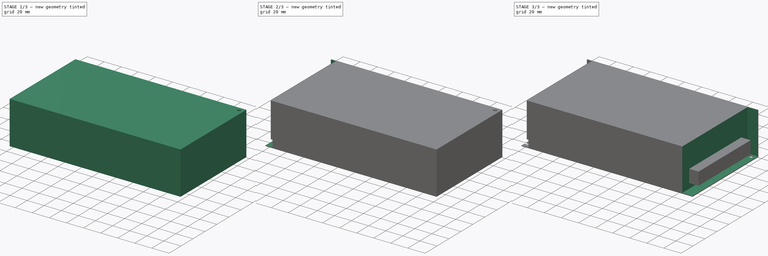
[diagram: build sequence overview — one tinted view per stage of 3, left to right]
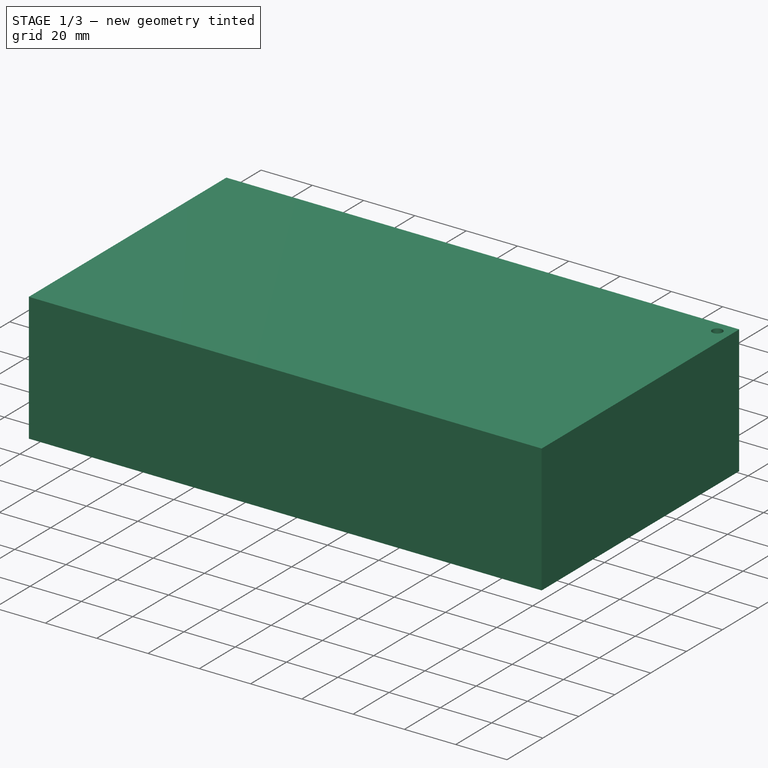
[diagram: stage 1 of 3 — iso view after this stage's code; geometry added in this stage tinted green]
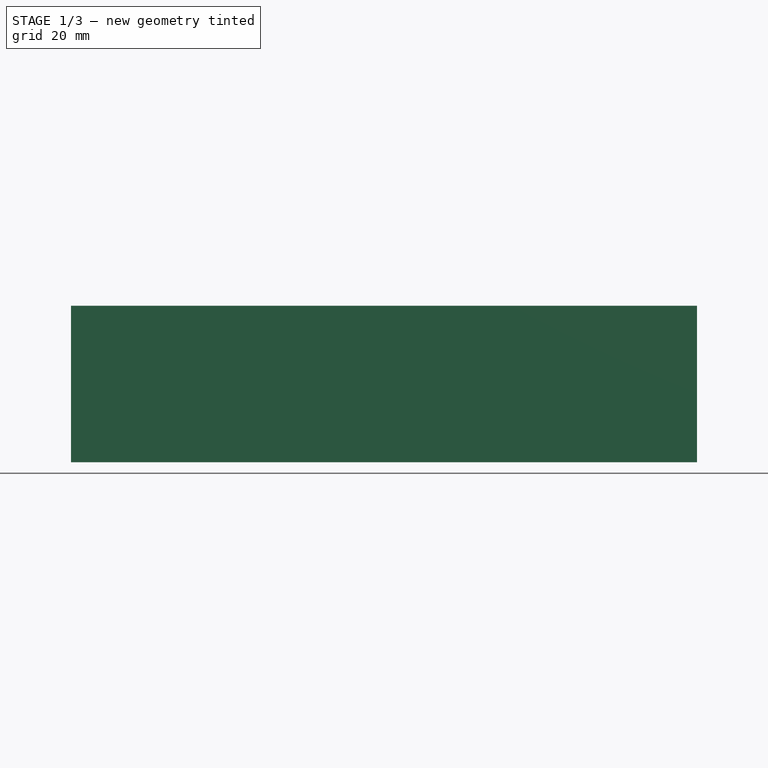
[diagram: stage 1 of 3 — front view after this stage's code; geometry added in this stage tinted green]
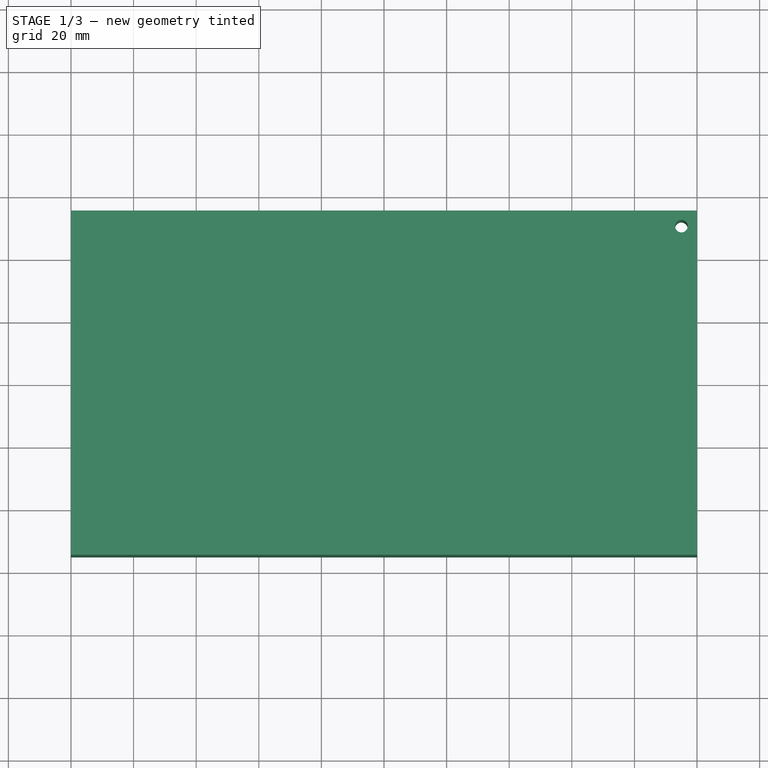
[diagram: stage 1 of 3 — top view after this stage's code; geometry added in this stage tinted green]
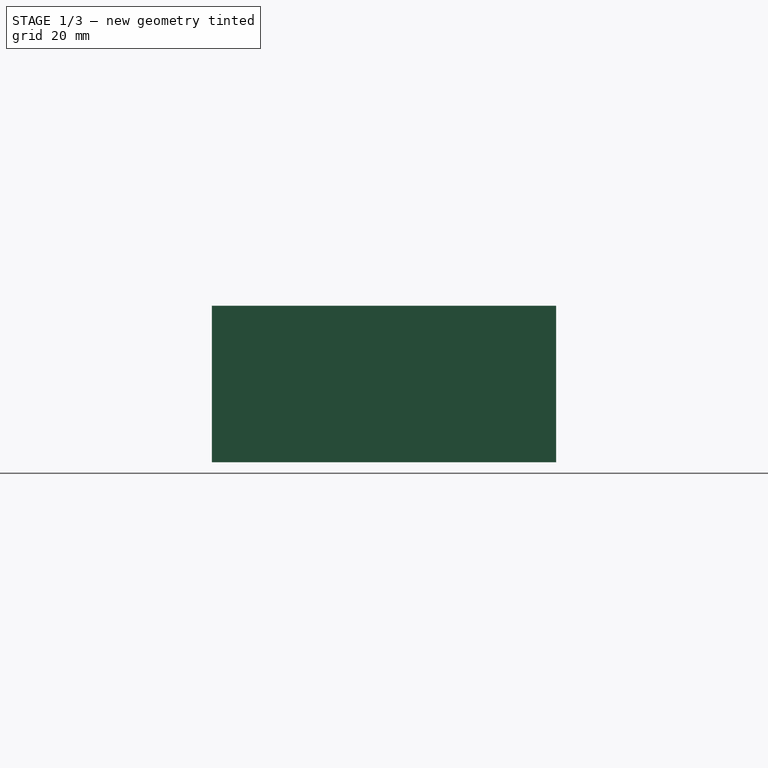
[diagram: stage 1 of 3 — right view after this stage's code; geometry added in this stage tinted green]
FCSTD DOCUMENT  (FreeCAD 1.0R39109 (Git))
Label: PSU-12V-10A
License: All rights reserved
LicenseURL: http://en.wikipedia.org/wiki/All_rights_reserved
objects: Sketcher::SketchObject×7, PartDesign::Pocket×5, PartDesign::Pad×2, PartDesign::Body×2, App::Part×1
note: 37 computed .brp shape members not serialized (recipe doc carries the construction recipe); baked Part::Feature solids carry a one-line shape summary decoded from their .brp

FEATURE [Sketcher::SketchObject] Sketch
  ArcFitTolerance = 1e-06
  AttachmentSupport = -> [XY_Plane001]
  FullyConstrained = true
  MakeInternals = false
  MapMode = 5
  sketch-geometry (5):
    g0: LineSegment StartX=-100 StartY=55 StartZ=0 EndX=-100 EndY=-55 EndZ=0
    g1: LineSegment StartX=-100 StartY=-55 StartZ=0 EndX=100 EndY=-55 EndZ=0
    g2: LineSegment StartX=100 StartY=-55 StartZ=0 EndX=100 EndY=55 EndZ=0
    g3: LineSegment StartX=100 StartY=55 StartZ=0 EndX=-100 EndY=55 EndZ=0
    g4: Circle CenterX=95 CenterY=50 CenterZ=0 NormalX=0 NormalY=0 NormalZ=1 AngleXU=0 Radius=2
  constraints (14):
    c: Coincident(g0,g1)
    c: Coincident(g1,g2)
    c: Coincident(g2,g3)
    c: Coincident(g3,g0)
    c: Vertical(g0)
    c: Vertical(g2)
    c: Horizontal(g1)
    c: Horizontal(g3)
    c: Symmetric(g0,g1,g-1)
    c: DistanceX(g3,g3) = 200
    c: DistanceY(g2,g2) = 110
    c: DistanceX(g4,g2) = 5
    c: DistanceY(g4,g2) = 5
    c: Diameter(g4) = 4
FEATURE [PartDesign::Pad] Pad
  Direction = (0,0,1)
  Length = 50
  Length2 = 10
  Profile = -> Sketch
  ReferenceAxis = -> Sketch [N_Axis]
  Suppressed = false
  Type = 0
FEATURE [PartDesign::Body] Body  label="body"
  AllowCompound = false
  Group = -> [Sketch,Pad,Sketch001,Pocket,Sketch002,Pocket001,Sketch003,Pocket002,Sketch004,Pocket003,Sketch005,Pocket004]
  Origin = -> Origin001
  Tip = -> Pocket004
FEATURE [Sketcher::SketchObject] Sketch006
  ArcFitTolerance = 1e-06
  AttachmentOffset = pos=(0,0,7) rot=(0,0,1;0rad)
  AttachmentSupport = -> [XY_Plane002]
  FullyConstrained = true
  MakeInternals = false
  MapMode = 5
  Placement = pos=(0,0,7) rot=(0,0,1;0rad)
  sketch-geometry (5):
    g0: LineSegment StartX=84 StartY=43.5 StartZ=0 EndX=84 EndY=-43.5 EndZ=0
    g1: LineSegment StartX=84 StartY=-43.5 StartZ=0 EndX=99 EndY=-43.5 EndZ=0
    g2: LineSegment StartX=99 StartY=-43.5 StartZ=0 EndX=99 EndY=43.5 EndZ=0
    g3: LineSegment StartX=99 StartY=43.5 StartZ=0 EndX=84 EndY=43.5 EndZ=0
    g4: GeomPoint X=100 Y=-55 Z=0
  constraints (13):
    c: Coincident(g0,g1)
    c: Coincident(g1,g2)
    c: Coincident(g2,g3)
    c: Coincident(g3,g0)
    c: Vertical(g0)
    c: Horizontal(g1)
    c: Horizontal(g3)
    c: DistanceX(g4) = 100
    c: DistanceY(g4) = -55
    c: DistanceX(g1,g4) = 1
    c: DistanceY(g2,g2) = 87
    c: DistanceX(g3,g3) = 15
    c: Symmetric(g2,g1,g-1)
FEATURE [PartDesign::Pad] Pad001
  Direction = (0,0,1)
  Length = 15
  Length2 = 10
  Profile = -> Sketch006
  ReferenceAxis = -> Sketch006 [N_Axis]
  Suppressed = false
  Type = 0
FEATURE [PartDesign::Body] Body001  label="terminal-block"
  AllowCompound = false
  Group = -> [Sketch006,Pad001]
  Origin = -> Origin002
  Tip = -> Pad001
FEATURE [App::Part] Part  label="main"
  Group = -> [Body,Body001]
  Origin = -> Origin
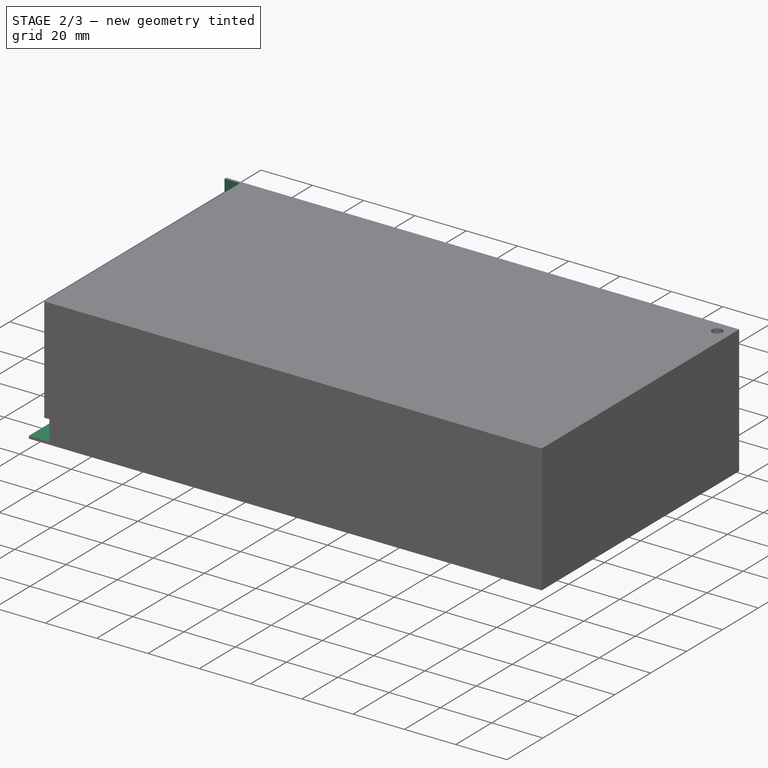
[diagram: stage 2 of 3 — iso view after this stage's code; geometry added in this stage tinted green]
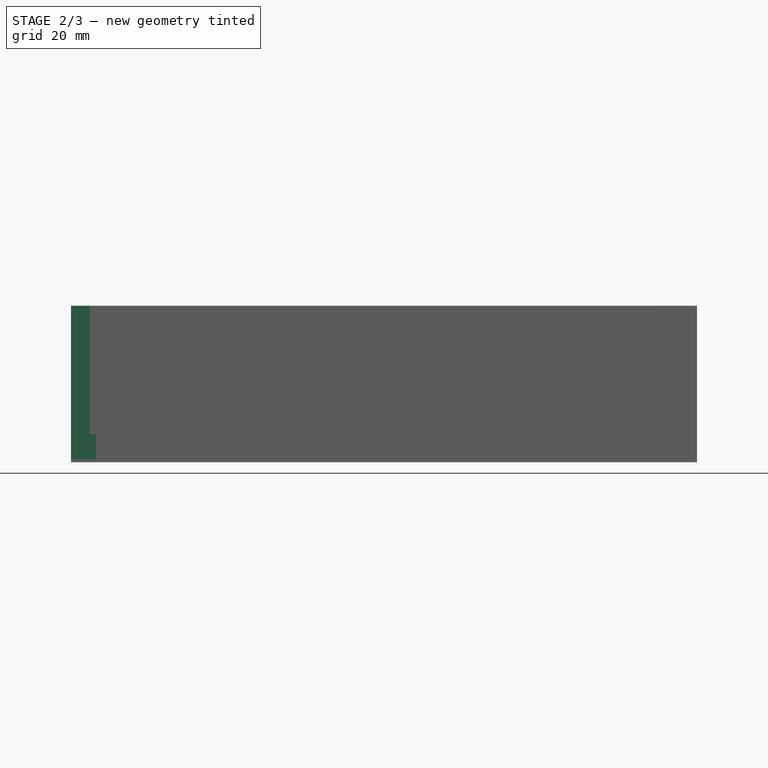
[diagram: stage 2 of 3 — front view after this stage's code; geometry added in this stage tinted green]
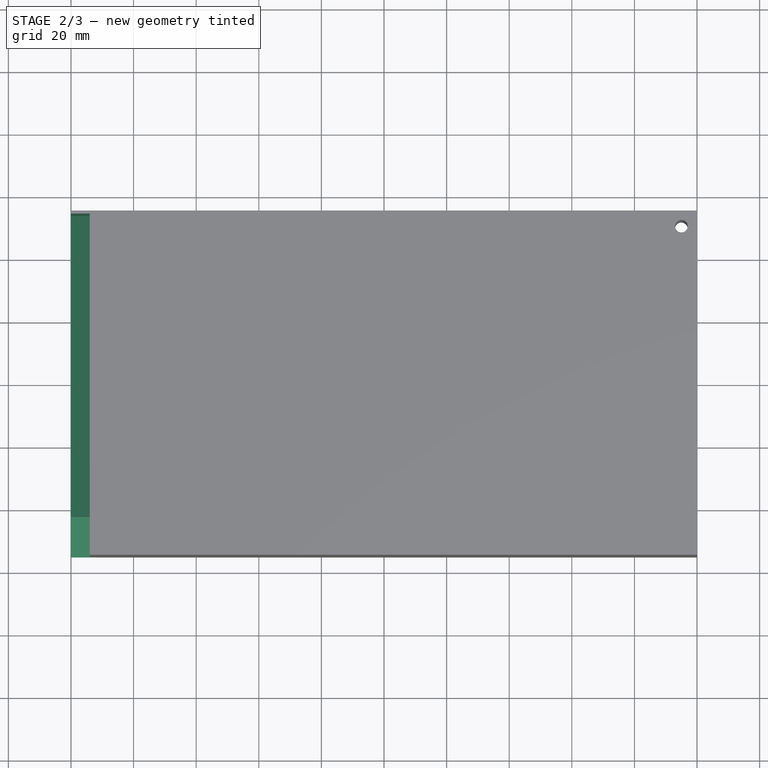
[diagram: stage 2 of 3 — top view after this stage's code; geometry added in this stage tinted green]
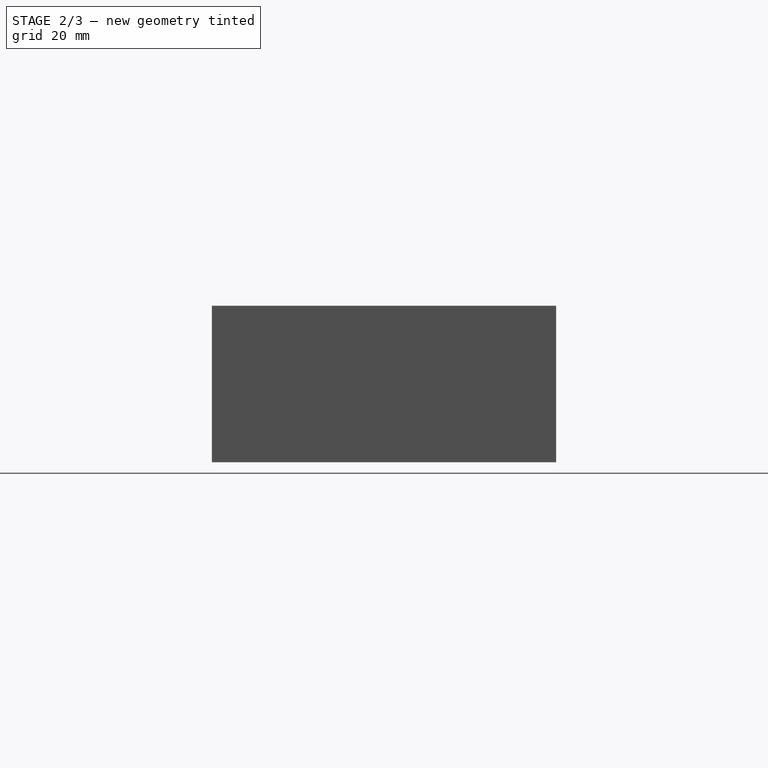
[diagram: stage 2 of 3 — right view after this stage's code; geometry added in this stage tinted green]
FEATURE [Sketcher::SketchObject] Sketch001
  ArcFitTolerance = 1e-06
  AttachmentOffset = pos=(0,0,1) rot=(0,0,1;0rad)
  AttachmentSupport = -> [XY_Plane001]
  FullyConstrained = true
  MakeInternals = false
  MapMode = 5
  Placement = pos=(0,0,1) rot=(0,0,1;0rad)
  sketch-geometry (4):
    g0: LineSegment StartX=-100 StartY=-42 StartZ=0 EndX=-100 EndY=-55 EndZ=0
    g1: LineSegment StartX=-100 StartY=-55 StartZ=0 EndX=-92 EndY=-55 EndZ=0
    g2: LineSegment StartX=-92 StartY=-55 StartZ=0 EndX=-92 EndY=-42 EndZ=0
    g3: LineSegment StartX=-92 StartY=-42 StartZ=0 EndX=-100 EndY=-42 EndZ=0
  constraints (12):
    c: Coincident(g0,g1)
    c: Coincident(g1,g2)
    c: Coincident(g2,g3)
    c: Coincident(g3,g0)
    c: Vertical(g0)
    c: Vertical(g2)
    c: Horizontal(g1)
    c: Horizontal(g3)
    c: DistanceX(g0) = -100
    c: DistanceY(g0) = -55
    c: DistanceX(g1,g1) = 8
    c: DistanceY(g2,g2) = 13
FEATURE [PartDesign::Pocket] Pocket
  BaseFeature = -> Pad
  Direction = (0,0,-1)
  Length = 8
  Length2 = 5
  Profile = -> Sketch001
  ReferenceAxis = -> Sketch001 [N_Axis]
  Reversed = true
  Suppressed = false
  Type = 0
FEATURE [Sketcher::SketchObject] Sketch002
  ArcFitTolerance = 1e-06
  AttachmentOffset = pos=(0,0,-54) rot=(0,0,1;0rad)
  AttachmentSupport = -> [XZ_Plane001]
  FullyConstrained = true
  MakeInternals = false
  MapMode = 5
  Placement = pos=(0,54,-1.2e-14) rot=(1,0,0;1.5708rad)
  sketch-geometry (5):
    g0: GeomPoint X=-100 Y=0 Z=0
    g1: LineSegment StartX=-100 StartY=6 StartZ=0 EndX=-94 EndY=12 EndZ=0
    g2: LineSegment StartX=-94 StartY=12 StartZ=0 EndX=-94 EndY=50 EndZ=0
    g3: LineSegment StartX=-94 StartY=50 StartZ=0 EndX=-100 EndY=50 EndZ=0
    g4: LineSegment StartX=-100 StartY=50 StartZ=0 EndX=-100 EndY=6 EndZ=0
  constraints (14):
    c: PointOnObject(g0,g-1)
    c: DistanceX(g0) = -100
    c: Coincident(g1,g2)
    c: Vertical(g2)
    c: Coincident(g2,g3)
    c: Coincident(g3,g4)
    c: Coincident(g4,g1)
    c: Vertical(g4)
    c: Horizontal(g3)
    c: DistanceY(g3) = 50
    c: Vertical(g1,g0)
    c: Angle(g1) = 0.785398
    c: DistanceX(g1,g1) = 6
    c: DistanceY(g1) = 6
FEATURE [PartDesign::Pocket] Pocket001
  BaseFeature = -> Pocket
  Direction = (0,1,-2e-16)
  Length = 5
  Length2 = 5
  Profile = -> Sketch002
  ReferenceAxis = -> Sketch002 [N_Axis]
  Reversed = true
  Suppressed = false
  Type = 1
FEATURE [Sketcher::SketchObject] Sketch003
  ArcFitTolerance = 1e-06
  AttachmentOffset = pos=(0,0,1) rot=(0,0,1;0rad)
  AttachmentSupport = -> [XY_Plane001]
  FullyConstrained = true
  MakeInternals = false
  MapMode = 5
  Placement = pos=(0,0,1) rot=(0,0,1;0rad)
  sketch-geometry (4):
    g0: LineSegment StartX=-100 StartY=-42 StartZ=0 EndX=-100 EndY=-55 EndZ=0
    g1: LineSegment StartX=-100 StartY=-55 StartZ=0 EndX=-94 EndY=-55 EndZ=0
    g2: LineSegment StartX=-94 StartY=-55 StartZ=0 EndX=-94 EndY=-42 EndZ=0
    g3: LineSegment StartX=-94 StartY=-42 StartZ=0 EndX=-100 EndY=-42 EndZ=0
  constraints (12):
    c: Coincident(g0,g1)
    c: Coincident(g1,g2)
    c: Coincident(g2,g3)
    c: Coincident(g3,g0)
    c: Vertical(g0)
    c: Vertical(g2)
    c: Horizontal(g1)
    c: Horizontal(g3)
    c: DistanceX(g0) = -100
    c: DistanceY(g0) = -55
    c: DistanceY(g2,g2) = 13
    c: DistanceX(g3,g3) = 6
FEATURE [PartDesign::Pocket] Pocket002
  BaseFeature = -> Pocket001
  Direction = (0,0,-1)
  Length = 5
  Length2 = 5
  Profile = -> Sketch003
  ReferenceAxis = -> Sketch003 [N_Axis]
  Refine = true
  Reversed = true
  Suppressed = false
  Type = 1
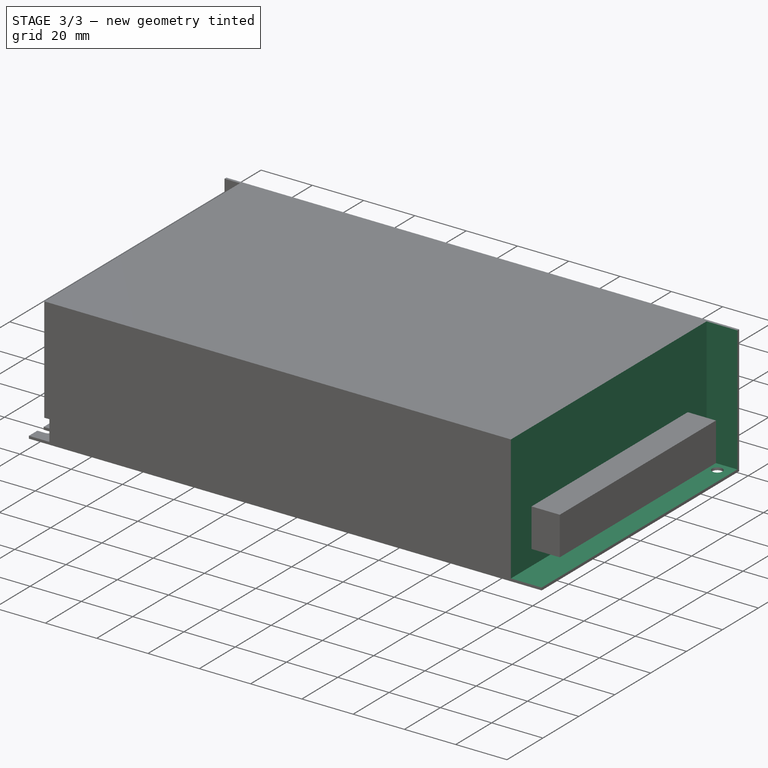
[diagram: stage 3 of 3 — iso view after this stage's code; geometry added in this stage tinted green]
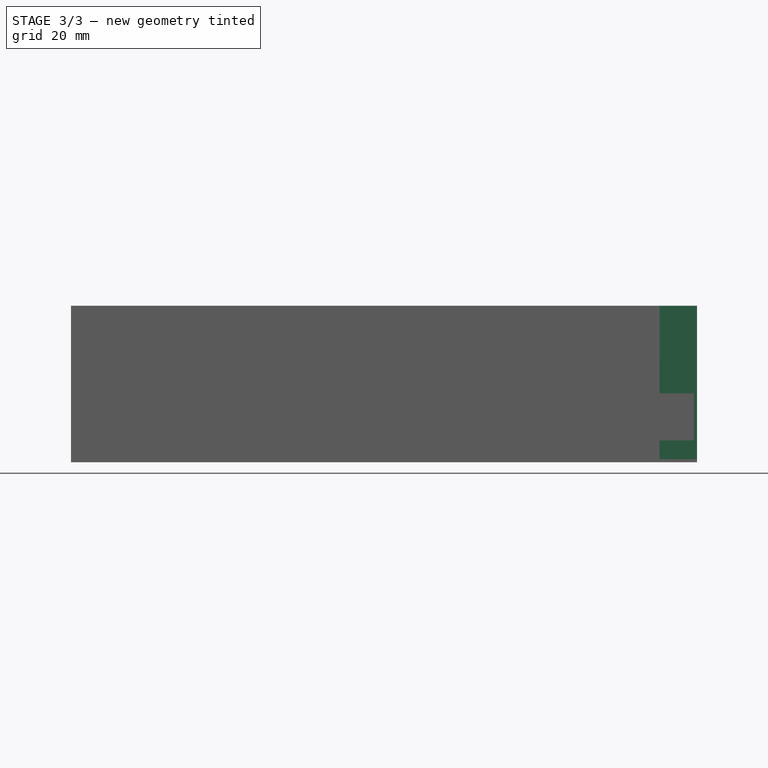
[diagram: stage 3 of 3 — front view after this stage's code; geometry added in this stage tinted green]
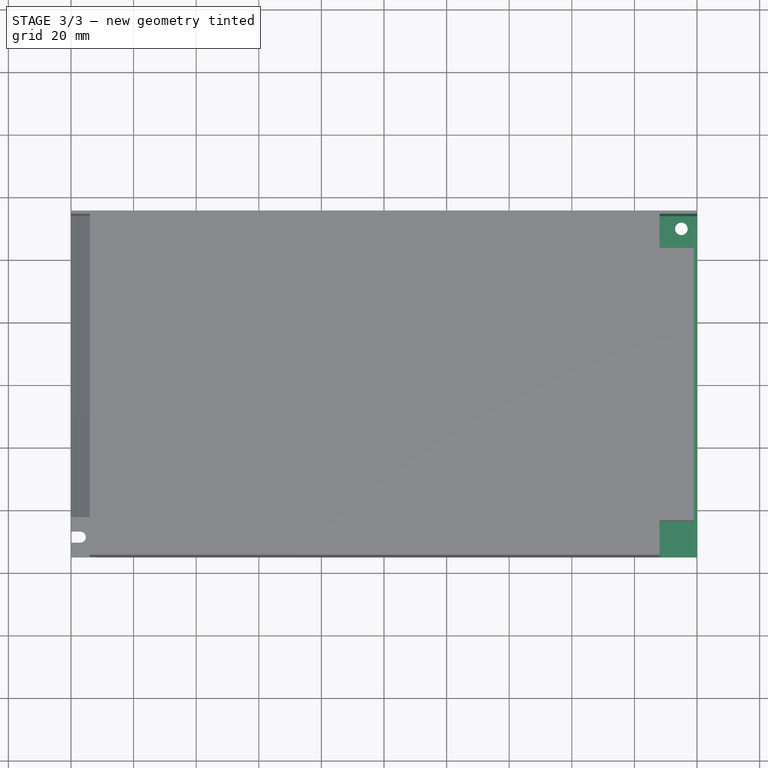
[diagram: stage 3 of 3 — top view after this stage's code; geometry added in this stage tinted green]
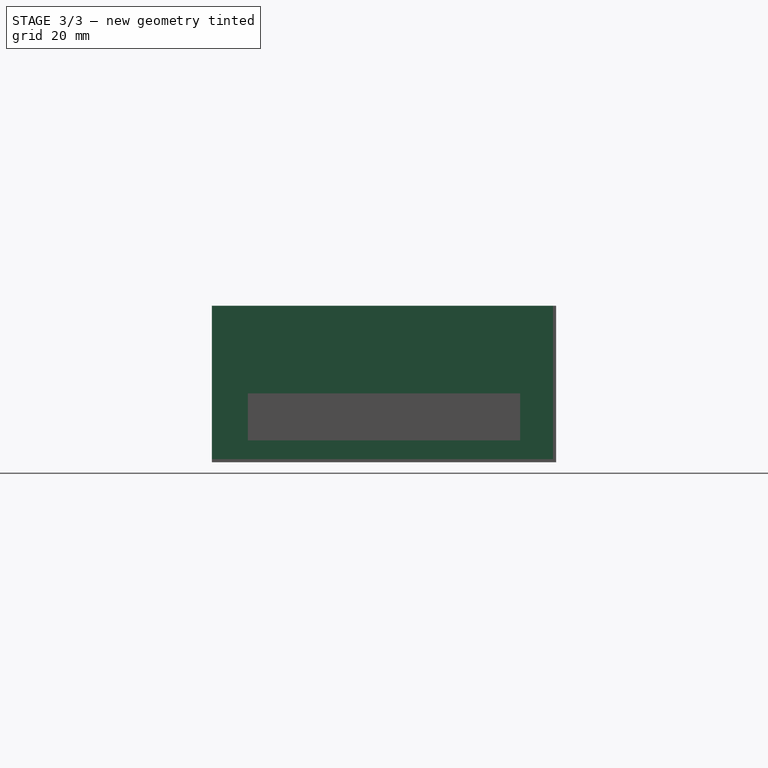
[diagram: stage 3 of 3 — right view after this stage's code; geometry added in this stage tinted green]
FEATURE [Sketcher::SketchObject] Sketch004
  ArcFitTolerance = 1e-06
  AttachmentOffset = pos=(0,0,1) rot=(0,0,1;0rad)
  AttachmentSupport = -> [XY_Plane001]
  FullyConstrained = true
  MakeInternals = false
  MapMode = 5
  Placement = pos=(0,0,1) rot=(0,0,1;0rad)
  sketch-geometry (5):
    g0: LineSegment StartX=88 StartY=54 StartZ=0 EndX=88 EndY=-55 EndZ=0
    g1: LineSegment StartX=88 StartY=-55 StartZ=0 EndX=100 EndY=-55 EndZ=0
    g2: LineSegment StartX=100 StartY=-55 StartZ=0 EndX=100 EndY=54 EndZ=0
    g3: LineSegment StartX=100 StartY=54 StartZ=0 EndX=88 EndY=54 EndZ=0
    g4: GeomPoint X=100 Y=55 Z=0
  constraints (13):
    c: Coincident(g0,g1)
    c: Coincident(g1,g2)
    c: Coincident(g2,g3)
    c: Coincident(g3,g0)
    c: Vertical(g0)
    c: Vertical(g2)
    c: Horizontal(g1)
    c: Horizontal(g3)
    c: DistanceY(g1) = -55
    c: DistanceX(g1) = 100
    c: DistanceX(g1,g1) = 12
    c: Symmetric(g4,g1,g-1)
    c: DistanceY(g2,g4) = 1
FEATURE [PartDesign::Pocket] Pocket003
  BaseFeature = -> Pocket002
  Direction = (0,0,-1)
  Length = 5
  Length2 = 5
  Profile = -> Sketch004
  ReferenceAxis = -> Sketch004 [N_Axis]
  Reversed = true
  Suppressed = false
  Type = 1
FEATURE [Sketcher::SketchObject] Sketch005
  ArcFitTolerance = 1e-06
  AttachmentSupport = -> [XY_Plane001]
  FullyConstrained = true
  MakeInternals = false
  MapMode = 5
  sketch-geometry (5):
    g0: GeomPoint X=-100 Y=-55 Z=0
    g1: ArcOfCircle CenterX=-97 CenterY=-48.5 CenterZ=0 NormalX=0 NormalY=0 NormalZ=1 AngleXU=0 Radius=1.75 StartAngle=4.71239 EndAngle=7.85398
    g2: LineSegment StartX=-97 StartY=-50.25 StartZ=0 EndX=-100 EndY=-50.25 EndZ=0
    g3: LineSegment StartX=-100 StartY=-50.25 StartZ=0 EndX=-100 EndY=-46.75 EndZ=0
    g4: LineSegment StartX=-100 StartY=-46.75 StartZ=0 EndX=-97 EndY=-46.75 EndZ=0
  constraints (13):
    c: DistanceX(g0) = -100
    c: DistanceY(g0) = -55
    c: Tangent(g1,g2) = 1.5708
    c: Coincident(g2,g3)
    c: Vertical(g3)
    c: Coincident(g3,g4)
    c: Tangent(g4,g1) = 1.5708
    c: Horizontal(g4)
    c: Horizontal(g2)
    c: DistanceY(g0,g1) = 6.5
    c: DistanceX(g2,g2) = 3
    c: Vertical(g2,g0)
    c: Diameter(g1) = 3.5
FEATURE [PartDesign::Pocket] Pocket004
  BaseFeature = -> Pocket003
  Direction = (0,0,-1)
  Length = 1
  Length2 = 5
  Profile = -> Sketch005
  ReferenceAxis = -> Sketch005 [N_Axis]
  Reversed = true
  Suppressed = false
  Type = 0
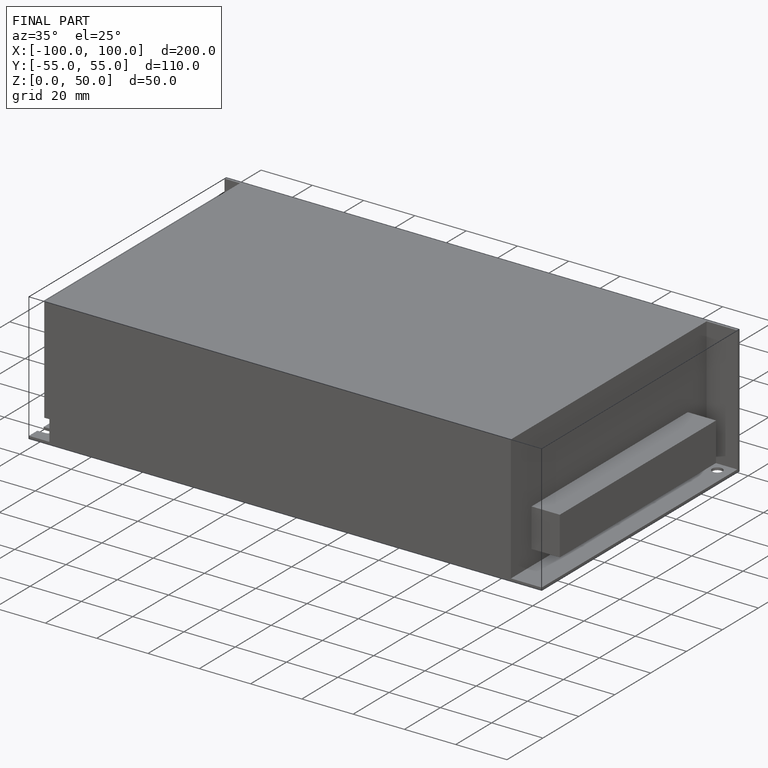
[diagram: finished part — iso view with bounding-box wireframe]
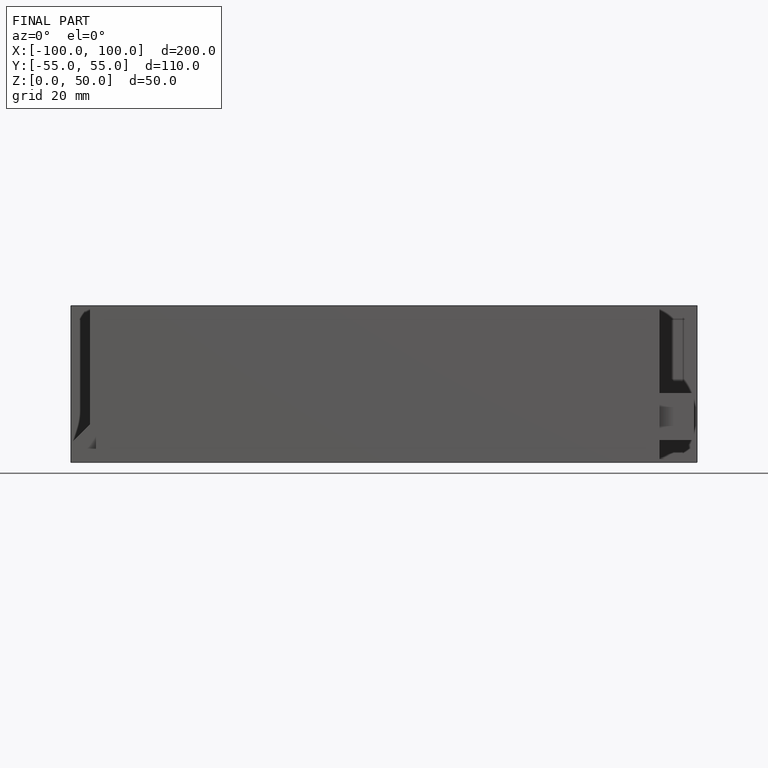
[diagram: finished part — front view with bounding-box wireframe]
